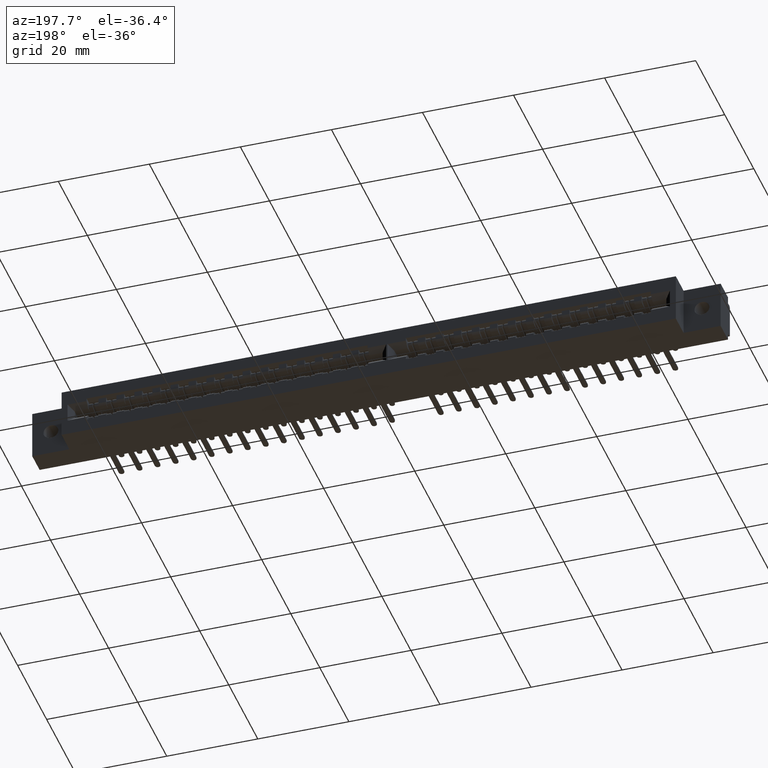
[diagram: clean part render]
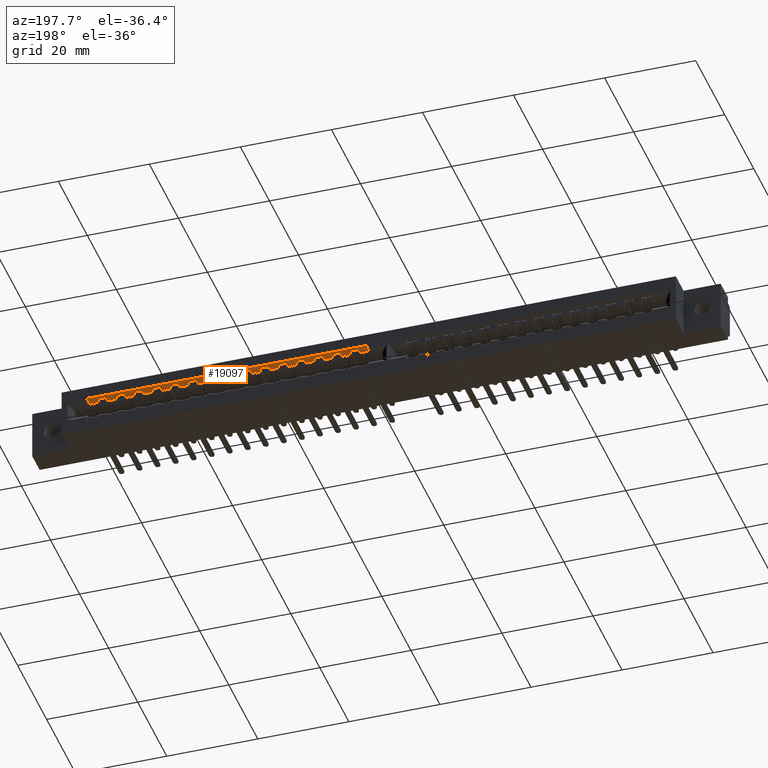
[diagram: same view with one face highlighted and labeled with its STEP entity id]
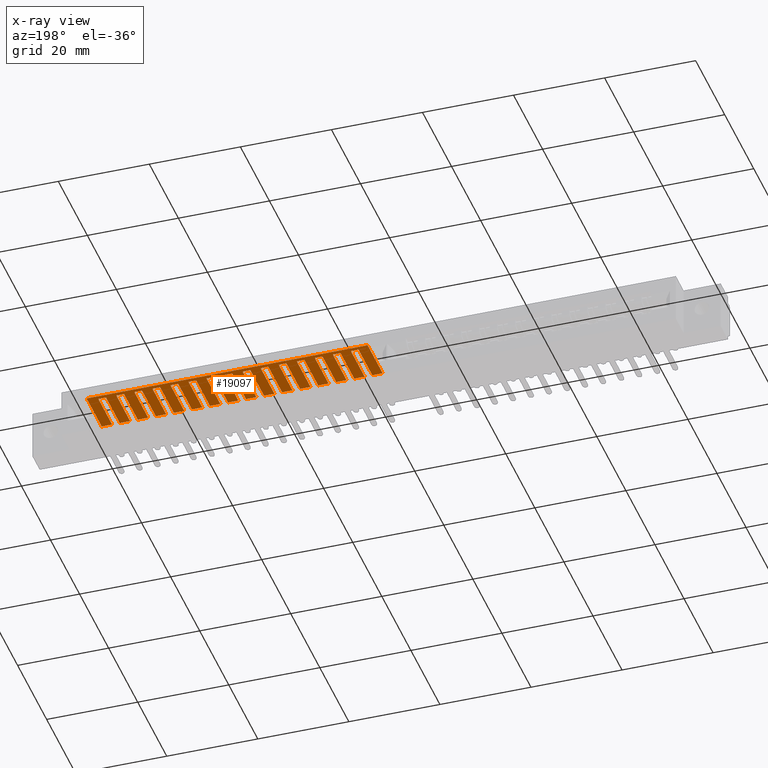
[diagram: x-ray of the same camera — body ghosted, the highlighted face saturated]
A machine part, auxiliary view. The second image highlights one B-rep face of the part: STEP entity #19097.
The next image is the same camera in x-ray: the body ghosted, the highlighted face saturated — about 0% of this face is hidden behind the body in this view.
In plain terms, the highlighted planar face has unit normal (0, 0, 1).
Its self-contained STEP definition (entity closure, byte-faithful):
#104 = LINE ( 'NONE', #19102, #3192 ) ;
#146 = DIRECTION ( 'NONE',  ( -0.0000000000000000000, 1.000000000000000000, -0.0000000000000000000 ) ) ;
#169 = DIRECTION ( 'NONE',  ( 1.000000000000000000, 0.0000000000000000000, -0.0000000000000000000 ) ) ;
#181 = VECTOR ( 'NONE', #18825, 1000.000000000000000 ) ;
#260 = CARTESIAN_POINT ( 'NONE',  ( 26.30170000000002500, -3.253161906569783700, 2.730499999999999300 ) ) ;
#265 = VECTOR ( 'NONE', #21540, 1000.000000000000000 ) ;
#413 = ORIENTED_EDGE ( 'NONE', *, *, #24569, .F. ) ;
#415 = ORIENTED_EDGE ( 'NONE', *, *, #9816, .T. ) ;
#428 = VERTEX_POINT ( 'NONE', #18815 ) ;
#611 = ORIENTED_EDGE ( 'NONE', *, *, #20425, .T. ) ;
#665 = VERTEX_POINT ( 'NONE', #13277 ) ;
#907 = EDGE_CURVE ( 'NONE', #24771, #23378, #5547, .T. ) ;
#908 = CARTESIAN_POINT ( 'NONE',  ( 55.71490000000002900, 1.295400000000000300, 2.730499999999999300 ) ) ;
#971 = VECTOR ( 'NONE', #3642, 1000.000000000000000 ) ;
#1290 = CARTESIAN_POINT ( 'NONE',  ( 16.09090000000002600, -3.253161906569783700, 2.730499999999999300 ) ) ;
#1464 = DIRECTION ( 'NONE',  ( -0.0000000000000000000, 1.000000000000000000, -0.0000000000000000000 ) ) ;
#1485 = VERTEX_POINT ( 'NONE', #23953 ) ;
#1487 = LINE ( 'NONE', #23002, #27735 ) ;
#1564 = LINE ( 'NONE', #25975, #11939 ) ;
#1596 = DIRECTION ( 'NONE',  ( -0.0000000000000000000, 0.0000000000000000000, 1.000000000000000000 ) ) ;
#1626 = EDGE_CURVE ( 'NONE', #15661, #7489, #11727, .T. ) ;
#1661 = VERTEX_POINT ( 'NONE', #9120 ) ;
#1669 = LINE ( 'NONE', #15692, #14489 ) ;
#1674 = CARTESIAN_POINT ( 'NONE',  ( 27.97810000000002600, -3.253161906569783700, 2.730499999999999300 ) ) ;
#1703 = VECTOR ( 'NONE', #14844, 1000.000000000000000 ) ;
#1753 = VECTOR ( 'NONE', #21882, 1000.000000000000000 ) ;
#1756 = CARTESIAN_POINT ( 'NONE',  ( 61.96330000000001800, 11.68399999999999900, 2.730499999999999300 ) ) ;
#1862 = VERTEX_POINT ( 'NONE', #12187 ) ;
#1923 = ORIENTED_EDGE ( 'NONE', *, *, #21116, .F. ) ;
#2109 = VERTEX_POINT ( 'NONE', #17331 ) ;
#2168 = EDGE_CURVE ( 'NONE', #27062, #19909, #9648, .T. ) ;
#2173 = EDGE_CURVE ( 'NONE', #26257, #15100, #11699, .T. ) ;
#2174 = ORIENTED_EDGE ( 'NONE', *, *, #28416, .F. ) ;
#2206 = EDGE_CURVE ( 'NONE', #20834, #21254, #17552, .T. ) ;
#2257 = DIRECTION ( 'NONE',  ( -1.000000000000000000, 0.0000000000000000000, -0.0000000000000000000 ) ) ;
#2326 = CARTESIAN_POINT ( 'NONE',  ( 59.67730000000002400, 1.295400000000000300, 2.730499999999999300 ) ) ;
#2344 = DIRECTION ( 'NONE',  ( 1.000000000000000000, 0.0000000000000000000, -0.0000000000000000000 ) ) ;
#2406 = ORIENTED_EDGE ( 'NONE', *, *, #8125, .F. ) ;
#2445 = EDGE_CURVE ( 'NONE', #12649, #19229, #20613, .T. ) ;
#2526 = ORIENTED_EDGE ( 'NONE', *, *, #9616, .F. ) ;
#2570 = ORIENTED_EDGE ( 'NONE', *, *, #5096, .F. ) ;
#2584 = ORIENTED_EDGE ( 'NONE', *, *, #13495, .T. ) ;
#2784 = LINE ( 'NONE', #13828, #25923 ) ;
#2935 = VERTEX_POINT ( 'NONE', #7276 ) ;
#3079 = VERTEX_POINT ( 'NONE', #16952 ) ;
#3192 = VECTOR ( 'NONE', #1464, 1000.000000000000000 ) ;
#3386 = VECTOR ( 'NONE', #21521, 1000.000000000000000 ) ;
#3409 = ORIENTED_EDGE ( 'NONE', *, *, #25016, .F. ) ;
#3433 = CARTESIAN_POINT ( 'NONE',  ( 22.33930000000002600, -3.253161906569783700, 2.730499999999999300 ) ) ;
#3462 = DIRECTION ( 'NONE',  ( -0.0000000000000000000, 1.000000000000000000, -0.0000000000000000000 ) ) ;
#3486 = CARTESIAN_POINT ( 'NONE',  ( 59.67730000000002400, 1.295400000000000300, 2.730499999999999300 ) ) ;
#3518 = DIRECTION ( 'NONE',  ( -1.000000000000000000, 0.0000000000000000000, -0.0000000000000000000 ) ) ;
#3530 = VECTOR ( 'NONE', #6974, 1000.000000000000000 ) ;
#3550 = VERTEX_POINT ( 'NONE', #14728 ) ;
#3572 = VERTEX_POINT ( 'NONE', #16558 ) ;
#3623 = VECTOR ( 'NONE', #4742, 1000.000000000000000 ) ;
#3642 = DIRECTION ( 'NONE',  ( -0.0000000000000000000, 1.000000000000000000, -0.0000000000000000000 ) ) ;
#3651 = ORIENTED_EDGE ( 'NONE', *, *, #27616, .T. ) ;
#3730 = EDGE_CURVE ( 'NONE', #15372, #16637, #9900, .T. ) ;
#3767 = LINE ( 'NONE', #25730, #7606 ) ;
#3889 = LINE ( 'NONE', #26399, #16337 ) ;
#3935 = EDGE_LOOP ( 'NONE', ( #4806, #19410, #10012, #18309, #19708, #611, #14549, #413, #2526, #4936, #12350, #8821, #11934, #10652, #7735, #3409, #8180, #19184, #415, #19672, #20360, #25261, #18896, #25601, #14064, #7758, #27503, #10928, #27665, #26949, #24207, #17912, #1923, #24141, #23912, #2406, #23557, #3651, #14375, #5982, #27499, #11997, #15627, #13016, #7265, #13994, #11641, #2570, #21286, #23193, #20615, #16191, #21350, #16376, #9355, #2584, #10397, #18810, #4181, #2174, #5344, #27966, #13004, #21676 ) ) ;
#3970 = CARTESIAN_POINT ( 'NONE',  ( 59.67730000000002400, 1.295400000000000300, 2.730499999999999300 ) ) ;
#3995 = CARTESIAN_POINT ( 'NONE',  ( 0.2413000000000276000, 11.68399999999999900, 2.730499999999999300 ) ) ;
#4017 = CARTESIAN_POINT ( 'NONE',  ( 51.75250000000001900, 1.295400000000000300, 2.730499999999999300 ) ) ;
#4027 = EDGE_CURVE ( 'NONE', #17429, #2935, #28123, .T. ) ;
#4090 = DIRECTION ( 'NONE',  ( -0.0000000000000000000, 1.000000000000000000, -0.0000000000000000000 ) ) ;
#4105 = EDGE_CURVE ( 'NONE', #428, #26117, #5011, .T. ) ;
#4133 = LINE ( 'NONE', #27484, #7641 ) ;
#4135 = DIRECTION ( 'NONE',  ( -0.0000000000000000000, 1.000000000000000000, -0.0000000000000000000 ) ) ;
#4150 = CARTESIAN_POINT ( 'NONE',  ( 2.527300000000023900, 10.79499999999999800, 2.730499999999999300 ) ) ;
#4181 = ORIENTED_EDGE ( 'NONE', *, *, #26788, .T. ) ;
#4316 = LINE ( 'NONE', #13849, #24021 ) ;
#4416 = VERTEX_POINT ( 'NONE', #8636 ) ;
#4448 = VERTEX_POINT ( 'NONE', #19697 ) ;
#4467 = CARTESIAN_POINT ( 'NONE',  ( 0.2413000000000276000, -3.253161906569783700, 2.730499999999999300 ) ) ;
#4544 = VECTOR ( 'NONE', #13050, 1000.000000000000000 ) ;
#4594 = VECTOR ( 'NONE', #21776, 1000.000000000000000 ) ;
#4600 = LINE ( 'NONE', #27430, #19448 ) ;
#4732 = CARTESIAN_POINT ( 'NONE',  ( 27.97810000000002600, 1.295400000000000300, 2.730499999999999300 ) ) ;
#4742 = DIRECTION ( 'NONE',  ( -1.000000000000000000, 0.0000000000000000000, -0.0000000000000000000 ) ) ;
#4743 = AXIS2_PLACEMENT_3D ( 'NONE', #8279, #1596, #28016 ) ;
#4806 = ORIENTED_EDGE ( 'NONE', *, *, #24276, .F. ) ;
#4936 = ORIENTED_EDGE ( 'NONE', *, *, #14675, .T. ) ;
#4956 = VERTEX_POINT ( 'NONE', #11060 ) ;
#4966 = VECTOR ( 'NONE', #12619, 1000.000000000000000 ) ;
#5002 = EDGE_CURVE ( 'NONE', #11682, #6016, #17383, .T. ) ;
#5011 = LINE ( 'NONE', #9804, #7831 ) ;
#5047 = LINE ( 'NONE', #9866, #27832 ) ;
#5084 = CARTESIAN_POINT ( 'NONE',  ( 61.96330000000001800, 10.79499999999999800, 2.730499999999999300 ) ) ;
#5096 = EDGE_CURVE ( 'NONE', #5677, #665, #4600, .T. ) ;
#5193 = VERTEX_POINT ( 'NONE', #20490 ) ;
#5263 = CARTESIAN_POINT ( 'NONE',  ( 34.22650000000002300, -3.253161906569783700, 2.730499999999999300 ) ) ;
#5327 = CARTESIAN_POINT ( 'NONE',  ( 2.527300000000023900, -3.253161906569783700, 2.730499999999999300 ) ) ;
#5344 = ORIENTED_EDGE ( 'NONE', *, *, #28231, .F. ) ;
#5390 = VERTEX_POINT ( 'NONE', #13877 ) ;
#5431 = CARTESIAN_POINT ( 'NONE',  ( 14.41450000000002500, 10.79499999999999800, 2.730499999999999300 ) ) ;
#5542 = CARTESIAN_POINT ( 'NONE',  ( 38.18890000000002500, 1.295400000000000300, 2.730499999999999300 ) ) ;
#5547 = LINE ( 'NONE', #260, #16592 ) ;
#5644 = EDGE_CURVE ( 'NONE', #15235, #665, #28120, .T. ) ;
#5677 = VERTEX_POINT ( 'NONE', #13473 ) ;
#5714 = VECTOR ( 'NONE', #169, 1000.000000000000000 ) ;
#5780 = LINE ( 'NONE', #18992, #971 ) ;
#5851 = VECTOR ( 'NONE', #23977, 1000.000000000000000 ) ;
#5982 = ORIENTED_EDGE ( 'NONE', *, *, #21438, .F. ) ;
#6016 = VERTEX_POINT ( 'NONE', #6455 ) ;
#6053 = VECTOR ( 'NONE', #27688, 1000.000000000000000 ) ;
#6086 = LINE ( 'NONE', #3433, #26098 ) ;
#6141 = EDGE_CURVE ( 'NONE', #14304, #13969, #25025, .T. ) ;
#6308 = EDGE_CURVE ( 'NONE', #27366, #15372, #3889, .T. ) ;
#6455 = CARTESIAN_POINT ( 'NONE',  ( 38.18890000000002500, 10.79499999999999800, 2.730499999999999300 ) ) ;
#6504 = CARTESIAN_POINT ( 'NONE',  ( 61.96330000000001800, 10.79499999999999800, 2.730499999999999300 ) ) ;
#6643 = LINE ( 'NONE', #26245, #4544 ) ;
#6892 = DIRECTION ( 'NONE',  ( -0.0000000000000000000, 1.000000000000000000, -0.0000000000000000000 ) ) ;
#6923 = CARTESIAN_POINT ( 'NONE',  ( 31.94050000000002500, 10.79499999999999800, 2.730499999999999300 ) ) ;
#6974 = DIRECTION ( 'NONE',  ( 1.000000000000000000, 0.0000000000000000000, -0.0000000000000000000 ) ) ;
#7128 = VECTOR ( 'NONE', #27051, 1000.000000000000000 ) ;
#7129 = CARTESIAN_POINT ( 'NONE',  ( 8.166100000000030300, 1.295400000000000300, 2.730499999999999300 ) ) ;
#7185 = LINE ( 'NONE', #16698, #7554 ) ;
#7196 = CARTESIAN_POINT ( 'NONE',  ( 31.94050000000002500, -3.253161906569783700, 2.730499999999999300 ) ) ;
#7265 = ORIENTED_EDGE ( 'NONE', *, *, #12554, .F. ) ;
#7276 = CARTESIAN_POINT ( 'NONE',  ( 0.2413000000000276000, 1.295400000000000300, 2.730499999999999300 ) ) ;
#7349 = DIRECTION ( 'NONE',  ( 1.000000000000000000, 0.0000000000000000000, 0.0000000000000000000 ) ) ;
#7462 = LINE ( 'NONE', #24180, #5714 ) ;
#7489 = VERTEX_POINT ( 'NONE', #10569 ) ;
#7490 = DIRECTION ( 'NONE',  ( 1.000000000000000000, 0.0000000000000000000, -0.0000000000000000000 ) ) ;
#7497 = LINE ( 'NONE', #10689, #8869 ) ;
#7545 = DIRECTION ( 'NONE',  ( -1.000000000000000000, 0.0000000000000000000, -0.0000000000000000000 ) ) ;
#7554 = VECTOR ( 'NONE', #7660, 1000.000000000000000 ) ;
#7606 = VECTOR ( 'NONE', #4090, 1000.000000000000000 ) ;
#7617 = CARTESIAN_POINT ( 'NONE',  ( 43.82770000000002100, -3.253161906569783700, 2.730499999999999300 ) ) ;
#7628 = LINE ( 'NONE', #7617, #8999 ) ;
#7641 = VECTOR ( 'NONE', #25099, 1000.000000000000000 ) ;
#7654 = CARTESIAN_POINT ( 'NONE',  ( 24.01570000000002700, -3.253161906569783700, 2.730499999999999300 ) ) ;
#7660 = DIRECTION ( 'NONE',  ( -1.000000000000000000, 0.0000000000000000000, -0.0000000000000000000 ) ) ;
#7673 = VERTEX_POINT ( 'NONE', #18144 ) ;
#7705 = EDGE_CURVE ( 'NONE', #5390, #15925, #2784, .T. ) ;
#7735 = ORIENTED_EDGE ( 'NONE', *, *, #16641, .T. ) ;
#7758 = ORIENTED_EDGE ( 'NONE', *, *, #6308, .T. ) ;
#7831 = VECTOR ( 'NONE', #21055, 1000.000000000000000 ) ;
#8061 = VERTEX_POINT ( 'NONE', #19167 ) ;
#8097 = CARTESIAN_POINT ( 'NONE',  ( 24.01570000000002700, 1.295400000000000300, 2.730499999999999300 ) ) ;
#8113 = LINE ( 'NONE', #28430, #4594 ) ;
#8118 = CARTESIAN_POINT ( 'NONE',  ( 20.05330000000003200, 10.79499999999999800, 2.730499999999999300 ) ) ;
#8125 = EDGE_CURVE ( 'NONE', #7673, #20554, #22465, .T. ) ;
#8180 = ORIENTED_EDGE ( 'NONE', *, *, #5002, .F. ) ;
#8183 = CARTESIAN_POINT ( 'NONE',  ( 2.527300000000023900, 1.295400000000000300, 2.730499999999999300 ) ) ;
#8279 = CARTESIAN_POINT ( 'NONE',  ( 59.67730000000002400, -3.253161906569783700, 2.730499999999999300 ) ) ;
#8419 = CARTESIAN_POINT ( 'NONE',  ( 61.96330000000001800, 10.79499999999999800, 2.730499999999999300 ) ) ;
#8464 = DIRECTION ( 'NONE',  ( 1.000000000000000000, 0.0000000000000000000, -0.0000000000000000000 ) ) ;
#8564 = EDGE_CURVE ( 'NONE', #3572, #28358, #7628, .T. ) ;
#8625 = EDGE_CURVE ( 'NONE', #2935, #14214, #19295, .T. ) ;
#8636 = CARTESIAN_POINT ( 'NONE',  ( 16.09090000000002600, 10.79499999999999800, 2.730499999999999300 ) ) ;
#8726 = VERTEX_POINT ( 'NONE', #19621 ) ;
#8806 = CARTESIAN_POINT ( 'NONE',  ( 54.03850000000002000, -3.253161906569783700, 2.730499999999999300 ) ) ;
#8821 = ORIENTED_EDGE ( 'NONE', *, *, #20848, .F. ) ;
#8869 = VECTOR ( 'NONE', #10502, 1000.000000000000000 ) ;
#8929 = VERTEX_POINT ( 'NONE', #14603 ) ;
#8950 = DIRECTION ( 'NONE',  ( -0.0000000000000000000, 1.000000000000000000, -0.0000000000000000000 ) ) ;
#8990 = LINE ( 'NONE', #11288, #21383 ) ;
#8999 = VECTOR ( 'NONE', #23022, 1000.000000000000000 ) ;
#9120 = CARTESIAN_POINT ( 'NONE',  ( 35.90290000000003100, 10.79499999999999800, 2.730499999999999300 ) ) ;
#9127 = VECTOR ( 'NONE', #25721, 1000.000000000000000 ) ;
#9355 = ORIENTED_EDGE ( 'NONE', *, *, #8625, .T. ) ;
#9499 = CARTESIAN_POINT ( 'NONE',  ( 50.07610000000001800, 10.79499999999999800, 2.730499999999999300 ) ) ;
#9563 = EDGE_CURVE ( 'NONE', #20834, #1485, #11057, .T. ) ;
#9566 = CARTESIAN_POINT ( 'NONE',  ( 39.86530000000002600, 10.79499999999999800, 2.730499999999999300 ) ) ;
#9583 = EDGE_CURVE ( 'NONE', #10449, #27907, #21374, .T. ) ;
#9616 = EDGE_CURVE ( 'NONE', #10899, #13286, #3767, .T. ) ;
#9624 = VERTEX_POINT ( 'NONE', #14659 ) ;
#9648 = LINE ( 'NONE', #20296, #26847 ) ;
#9753 = CARTESIAN_POINT ( 'NONE',  ( 61.96330000000001800, 1.295400000000000300, 2.730499999999999300 ) ) ;
#9804 = CARTESIAN_POINT ( 'NONE',  ( 12.12850000000002700, -3.253161906569783700, 2.730499999999999300 ) ) ;
#9812 = DIRECTION ( 'NONE',  ( -1.000000000000000000, 0.0000000000000000000, -0.0000000000000000000 ) ) ;
#9816 = EDGE_CURVE ( 'NONE', #27993, #1661, #1669, .T. ) ;
#9866 = CARTESIAN_POINT ( 'NONE',  ( 59.67730000000002400, 1.295400000000000300, 2.730499999999999300 ) ) ;
#9900 = LINE ( 'NONE', #1674, #20569 ) ;
#9986 = CARTESIAN_POINT ( 'NONE',  ( 6.489700000000022200, 1.295400000000000300, 2.730499999999999300 ) ) ;
#9991 = EDGE_CURVE ( 'NONE', #17429, #10449, #27884, .T. ) ;
#10012 = ORIENTED_EDGE ( 'NONE', *, *, #22547, .T. ) ;
#10142 = VERTEX_POINT ( 'NONE', #5431 ) ;
#10227 = DIRECTION ( 'NONE',  ( 1.000000000000000000, 0.0000000000000000000, -0.0000000000000000000 ) ) ;
#10282 = EDGE_CURVE ( 'NONE', #9624, #26257, #11359, .T. ) ;
#10303 = CARTESIAN_POINT ( 'NONE',  ( 59.67730000000002400, 1.295400000000000300, 2.730499999999999300 ) ) ;
#10397 = ORIENTED_EDGE ( 'NONE', *, *, #21649, .F. ) ;
#10405 = PLANE ( 'NONE',  #4743 ) ;
#10430 = CARTESIAN_POINT ( 'NONE',  ( 51.75250000000001900, -3.253161906569783700, 2.730499999999999300 ) ) ;
#10449 = VERTEX_POINT ( 'NONE', #4150 ) ;
#10502 = DIRECTION ( 'NONE',  ( -1.000000000000000000, 0.0000000000000000000, -0.0000000000000000000 ) ) ;
#10569 = CARTESIAN_POINT ( 'NONE',  ( 4.203700000000025300, 1.295400000000000300, 2.730499999999999300 ) ) ;
#10652 = ORIENTED_EDGE ( 'NONE', *, *, #2206, .T. ) ;
#10689 = CARTESIAN_POINT ( 'NONE',  ( 59.67730000000002400, 1.295400000000000300, 2.730499999999999300 ) ) ;
#10757 = DIRECTION ( 'NONE',  ( -0.0000000000000000000, 1.000000000000000000, -0.0000000000000000000 ) ) ;
#10773 = VECTOR ( 'NONE', #20052, 1000.000000000000000 ) ;
#10899 = VERTEX_POINT ( 'NONE', #23245 ) ;
#10928 = ORIENTED_EDGE ( 'NONE', *, *, #16995, .F. ) ;
#11040 = CARTESIAN_POINT ( 'NONE',  ( 51.75250000000001900, 10.79499999999999800, 2.730499999999999300 ) ) ;
#11057 = LINE ( 'NONE', #16849, #1703 ) ;
#11060 = CARTESIAN_POINT ( 'NONE',  ( 58.00090000000002300, 10.79499999999999800, 2.730499999999999300 ) ) ;
#11233 = LINE ( 'NONE', #14390, #28103 ) ;
#11288 = CARTESIAN_POINT ( 'NONE',  ( 59.67730000000002400, 1.295400000000000300, 2.730499999999999300 ) ) ;
#11359 = LINE ( 'NONE', #16990, #3386 ) ;
#11562 = DIRECTION ( 'NONE',  ( -1.000000000000000000, 0.0000000000000000000, -0.0000000000000000000 ) ) ;
#11617 = EDGE_CURVE ( 'NONE', #18373, #15235, #26762, .T. ) ;
#11641 = ORIENTED_EDGE ( 'NONE', *, *, #5644, .T. ) ;
#11682 = VERTEX_POINT ( 'NONE', #5542 ) ;
#11699 = LINE ( 'NONE', #26661, #15494 ) ;
#11727 = LINE ( 'NONE', #17878, #20337 ) ;
#11755 = DIRECTION ( 'NONE',  ( -0.0000000000000000000, 1.000000000000000000, -0.0000000000000000000 ) ) ;
#11817 = DIRECTION ( 'NONE',  ( -0.0000000000000000000, 1.000000000000000000, -0.0000000000000000000 ) ) ;
#11923 = VECTOR ( 'NONE', #6892, 1000.000000000000000 ) ;
#11934 = ORIENTED_EDGE ( 'NONE', *, *, #9563, .F. ) ;
#11939 = VECTOR ( 'NONE', #27987, 1000.000000000000000 ) ;
#11997 = ORIENTED_EDGE ( 'NONE', *, *, #12373, .T. ) ;
#12040 = CARTESIAN_POINT ( 'NONE',  ( 30.26410000000002400, 1.295400000000000300, 2.730499999999999300 ) ) ;
#12187 = CARTESIAN_POINT ( 'NONE',  ( 14.41450000000002500, 1.295400000000000300, 2.730499999999999300 ) ) ;
#12210 = CARTESIAN_POINT ( 'NONE',  ( 55.71490000000002900, 10.79499999999999800, 2.730499999999999300 ) ) ;
#12241 = DIRECTION ( 'NONE',  ( 1.000000000000000000, 0.0000000000000000000, -0.0000000000000000000 ) ) ;
#12350 = ORIENTED_EDGE ( 'NONE', *, *, #8564, .T. ) ;
#12373 = EDGE_CURVE ( 'NONE', #1862, #428, #7185, .T. ) ;
#12469 = LINE ( 'NONE', #14802, #20717 ) ;
#12554 = EDGE_CURVE ( 'NONE', #18373, #25089, #5780, .T. ) ;
#12619 = DIRECTION ( 'NONE',  ( -0.0000000000000000000, 1.000000000000000000, -0.0000000000000000000 ) ) ;
#12649 = VERTEX_POINT ( 'NONE', #19459 ) ;
#12931 = EDGE_CURVE ( 'NONE', #5390, #8726, #28190, .T. ) ;
#12949 = CARTESIAN_POINT ( 'NONE',  ( 43.82770000000002100, 10.79499999999999800, 2.730499999999999300 ) ) ;
#12996 = LINE ( 'NONE', #7196, #7128 ) ;
#13004 = ORIENTED_EDGE ( 'NONE', *, *, #15964, .T. ) ;
#13016 = ORIENTED_EDGE ( 'NONE', *, *, #21037, .F. ) ;
#13050 = DIRECTION ( 'NONE',  ( 1.000000000000000000, 0.0000000000000000000, -0.0000000000000000000 ) ) ;
#13137 = EDGE_CURVE ( 'NONE', #27366, #14304, #14746, .T. ) ;
#13198 = CARTESIAN_POINT ( 'NONE',  ( 42.15130000000002000, 1.295400000000000300, 2.730499999999999300 ) ) ;
#13205 = VERTEX_POINT ( 'NONE', #8097 ) ;
#13277 = CARTESIAN_POINT ( 'NONE',  ( 8.166100000000030300, 10.79499999999999800, 2.730499999999999300 ) ) ;
#13286 = VERTEX_POINT ( 'NONE', #15401 ) ;
#13318 = LINE ( 'NONE', #25205, #25745 ) ;
#13470 = DIRECTION ( 'NONE',  ( 1.000000000000000000, 0.0000000000000000000, -0.0000000000000000000 ) ) ;
#13473 = CARTESIAN_POINT ( 'NONE',  ( 6.489700000000022200, 10.79499999999999800, 2.730499999999999300 ) ) ;
#13495 = EDGE_CURVE ( 'NONE', #14214, #21836, #13318, .T. ) ;
#13587 = CARTESIAN_POINT ( 'NONE',  ( 59.67730000000002400, 1.295400000000000300, 2.730499999999999300 ) ) ;
#13662 = DIRECTION ( 'NONE',  ( -0.0000000000000000000, 1.000000000000000000, -0.0000000000000000000 ) ) ;
#13827 = CARTESIAN_POINT ( 'NONE',  ( 12.12850000000002700, 10.79499999999999800, 2.730499999999999300 ) ) ;
#13828 = CARTESIAN_POINT ( 'NONE',  ( 59.67730000000002400, 1.295400000000000300, 2.730499999999999300 ) ) ;
#13849 = CARTESIAN_POINT ( 'NONE',  ( 61.96330000000001800, -3.253161906569783700, 2.730499999999999300 ) ) ;
#13877 = CARTESIAN_POINT ( 'NONE',  ( 34.22650000000002300, 1.295400000000000300, 2.730499999999999300 ) ) ;
#13969 = VERTEX_POINT ( 'NONE', #6923 ) ;
#13994 = ORIENTED_EDGE ( 'NONE', *, *, #11617, .T. ) ;
#14064 = ORIENTED_EDGE ( 'NONE', *, *, #13137, .F. ) ;
#14214 = VERTEX_POINT ( 'NONE', #3995 ) ;
#14289 = EDGE_CURVE ( 'NONE', #15661, #5677, #27070, .T. ) ;
#14304 = VERTEX_POINT ( 'NONE', #14946 ) ;
#14375 = ORIENTED_EDGE ( 'NONE', *, *, #14786, .T. ) ;
#14390 = CARTESIAN_POINT ( 'NONE',  ( 61.96330000000001800, 10.79499999999999800, 2.730499999999999300 ) ) ;
#14489 = VECTOR ( 'NONE', #146, 1000.000000000000000 ) ;
#14549 = ORIENTED_EDGE ( 'NONE', *, *, #2168, .T. ) ;
#14603 = CARTESIAN_POINT ( 'NONE',  ( 22.33930000000002600, 10.79499999999999800, 2.730499999999999300 ) ) ;
#14659 = CARTESIAN_POINT ( 'NONE',  ( 50.07610000000001800, 1.295400000000000300, 2.730499999999999300 ) ) ;
#14675 = EDGE_CURVE ( 'NONE', #10899, #3572, #1487, .T. ) ;
#14728 = CARTESIAN_POINT ( 'NONE',  ( 59.67730000000002400, 1.295400000000000300, 2.730499999999999300 ) ) ;
#14737 = VERTEX_POINT ( 'NONE', #908 ) ;
#14739 = CARTESIAN_POINT ( 'NONE',  ( 30.26410000000002400, -3.253161906569783700, 2.730499999999999300 ) ) ;
#14746 = LINE ( 'NONE', #14739, #24380 ) ;
#14766 = LINE ( 'NONE', #23282, #16819 ) ;
#14786 = EDGE_CURVE ( 'NONE', #5193, #4416, #16008, .T. ) ;
#14802 = CARTESIAN_POINT ( 'NONE',  ( 18.37690000000002400, -3.253161906569783700, 2.730499999999999300 ) ) ;
#14844 = DIRECTION ( 'NONE',  ( -0.0000000000000000000, 1.000000000000000000, -0.0000000000000000000 ) ) ;
#14903 = CARTESIAN_POINT ( 'NONE',  ( 47.79010000000002400, 10.79499999999999800, 2.730499999999999300 ) ) ;
#14946 = CARTESIAN_POINT ( 'NONE',  ( 30.26410000000002400, 10.79499999999999800, 2.730499999999999300 ) ) ;
#14954 = VECTOR ( 'NONE', #4135, 1000.000000000000000 ) ;
#15037 = CARTESIAN_POINT ( 'NONE',  ( 61.96330000000001800, 10.79499999999999800, 2.730499999999999300 ) ) ;
#15100 = VERTEX_POINT ( 'NONE', #11040 ) ;
#15235 = VERTEX_POINT ( 'NONE', #7129 ) ;
#15302 = LINE ( 'NONE', #8419, #3530 ) ;
#15372 = VERTEX_POINT ( 'NONE', #4732 ) ;
#15401 = CARTESIAN_POINT ( 'NONE',  ( 46.11370000000002300, 10.79499999999999800, 2.730499999999999300 ) ) ;
#15494 = VECTOR ( 'NONE', #2344, 1000.000000000000000 ) ;
#15627 = ORIENTED_EDGE ( 'NONE', *, *, #4105, .T. ) ;
#15639 = LINE ( 'NONE', #17269, #14954 ) ;
#15661 = VERTEX_POINT ( 'NONE', #9986 ) ;
#15692 = CARTESIAN_POINT ( 'NONE',  ( 35.90290000000003100, -3.253161906569783700, 2.730499999999999300 ) ) ;
#15916 = EDGE_CURVE ( 'NONE', #8726, #1661, #23569, .T. ) ;
#15925 = VERTEX_POINT ( 'NONE', #26153 ) ;
#15964 = EDGE_CURVE ( 'NONE', #14737, #25770, #15639, .T. ) ;
#15965 = CARTESIAN_POINT ( 'NONE',  ( 4.203700000000025300, 10.79499999999999800, 2.730499999999999300 ) ) ;
#15998 = EDGE_CURVE ( 'NONE', #8929, #3079, #6643, .T. ) ;
#16008 = LINE ( 'NONE', #1290, #20474 ) ;
#16181 = VERTEX_POINT ( 'NONE', #4017 ) ;
#16191 = ORIENTED_EDGE ( 'NONE', *, *, #9583, .F. ) ;
#16241 = LINE ( 'NONE', #8806, #10773 ) ;
#16271 = CARTESIAN_POINT ( 'NONE',  ( 61.96330000000001800, 10.79499999999999800, 2.730499999999999300 ) ) ;
#16337 = VECTOR ( 'NONE', #2257, 1000.000000000000000 ) ;
#16376 = ORIENTED_EDGE ( 'NONE', *, *, #4027, .T. ) ;
#16426 = DIRECTION ( 'NONE',  ( -1.000000000000000000, 0.0000000000000000000, -0.0000000000000000000 ) ) ;
#16554 = VECTOR ( 'NONE', #12241, 1000.000000000000000 ) ;
#16558 = CARTESIAN_POINT ( 'NONE',  ( 43.82770000000002100, 1.295400000000000300, 2.730499999999999300 ) ) ;
#16592 = VECTOR ( 'NONE', #24658, 1000.000000000000000 ) ;
#16634 = DIRECTION ( 'NONE',  ( -0.0000000000000000000, 1.000000000000000000, -0.0000000000000000000 ) ) ;
#16637 = VERTEX_POINT ( 'NONE', #22549 ) ;
#16641 = EDGE_CURVE ( 'NONE', #21254, #24917, #17301, .T. ) ;
#16698 = CARTESIAN_POINT ( 'NONE',  ( 59.67730000000002400, 1.295400000000000300, 2.730499999999999300 ) ) ;
#16770 = VECTOR ( 'NONE', #13470, 1000.000000000000000 ) ;
#16803 = VERTEX_POINT ( 'NONE', #18571 ) ;
#16819 = VECTOR ( 'NONE', #9812, 1000.000000000000000 ) ;
#16849 = CARTESIAN_POINT ( 'NONE',  ( 42.15130000000002000, -3.253161906569783700, 2.730499999999999300 ) ) ;
#16952 = CARTESIAN_POINT ( 'NONE',  ( 24.01570000000002700, 10.79499999999999800, 2.730499999999999300 ) ) ;
#16990 = CARTESIAN_POINT ( 'NONE',  ( 50.07610000000001800, -3.253161906569783700, 2.730499999999999300 ) ) ;
#16995 = EDGE_CURVE ( 'NONE', #23378, #16637, #25255, .T. ) ;
#17102 = DIRECTION ( 'NONE',  ( -0.0000000000000000000, 1.000000000000000000, -0.0000000000000000000 ) ) ;
#17239 = LINE ( 'NONE', #5084, #16554 ) ;
#17269 = CARTESIAN_POINT ( 'NONE',  ( 55.71490000000002900, -3.253161906569783700, 2.730499999999999300 ) ) ;
#17301 = LINE ( 'NONE', #22739, #23513 ) ;
#17331 = CARTESIAN_POINT ( 'NONE',  ( 59.67730000000002400, 10.79499999999999800, 2.730499999999999300 ) ) ;
#17383 = LINE ( 'NONE', #20870, #18764 ) ;
#17426 = CARTESIAN_POINT ( 'NONE',  ( 61.96330000000001800, 10.79499999999999800, 2.730499999999999300 ) ) ;
#17429 = VERTEX_POINT ( 'NONE', #8183 ) ;
#17430 = LINE ( 'NONE', #21031, #6053 ) ;
#17552 = LINE ( 'NONE', #13587, #25163 ) ;
#17663 = VECTOR ( 'NONE', #13662, 1000.000000000000000 ) ;
#17797 = CARTESIAN_POINT ( 'NONE',  ( 18.37690000000002400, 1.295400000000000300, 2.730499999999999300 ) ) ;
#17810 = EDGE_CURVE ( 'NONE', #16803, #16181, #22758, .T. ) ;
#17878 = CARTESIAN_POINT ( 'NONE',  ( 59.67730000000002400, 1.295400000000000300, 2.730499999999999300 ) ) ;
#17912 = ORIENTED_EDGE ( 'NONE', *, *, #15998, .F. ) ;
#18144 = CARTESIAN_POINT ( 'NONE',  ( 18.37690000000002400, 10.79499999999999800, 2.730499999999999300 ) ) ;
#18225 = CARTESIAN_POINT ( 'NONE',  ( 26.30170000000002500, 10.79499999999999800, 2.730499999999999300 ) ) ;
#18309 = ORIENTED_EDGE ( 'NONE', *, *, #2173, .F. ) ;
#18373 = VERTEX_POINT ( 'NONE', #26912 ) ;
#18571 = CARTESIAN_POINT ( 'NONE',  ( 54.03850000000002000, 1.295400000000000300, 2.730499999999999300 ) ) ;
#18764 = VECTOR ( 'NONE', #11817, 1000.000000000000000 ) ;
#18810 = ORIENTED_EDGE ( 'NONE', *, *, #23137, .T. ) ;
#18815 = CARTESIAN_POINT ( 'NONE',  ( 12.12850000000002700, 1.295400000000000300, 2.730499999999999300 ) ) ;
#18825 = DIRECTION ( 'NONE',  ( -1.000000000000000000, 0.0000000000000000000, -0.0000000000000000000 ) ) ;
#18896 = ORIENTED_EDGE ( 'NONE', *, *, #21644, .T. ) ;
#18992 = CARTESIAN_POINT ( 'NONE',  ( 10.45210000000002600, -3.253161906569783700, 2.730499999999999300 ) ) ;
#19077 = DIRECTION ( 'NONE',  ( -0.0000000000000000000, 1.000000000000000000, -0.0000000000000000000 ) ) ;
#19097 = ADVANCED_FACE ( 'NONE', ( #27564 ), #10405, .F. ) ;
#19102 = CARTESIAN_POINT ( 'NONE',  ( 58.00090000000002300, -3.253161906569783700, 2.730499999999999300 ) ) ;
#19167 = CARTESIAN_POINT ( 'NONE',  ( 58.00090000000002300, 1.295400000000000300, 2.730499999999999300 ) ) ;
#19184 = ORIENTED_EDGE ( 'NONE', *, *, #19785, .T. ) ;
#19229 = VERTEX_POINT ( 'NONE', #21191 ) ;
#19295 = LINE ( 'NONE', #4467, #5851 ) ;
#19410 = ORIENTED_EDGE ( 'NONE', *, *, #17810, .T. ) ;
#19429 = DIRECTION ( 'NONE',  ( 1.000000000000000000, 0.0000000000000000000, -0.0000000000000000000 ) ) ;
#19448 = VECTOR ( 'NONE', #7490, 1000.000000000000000 ) ;
#19459 = CARTESIAN_POINT ( 'NONE',  ( 22.33930000000002600, 1.295400000000000300, 2.730499999999999300 ) ) ;
#19474 = CARTESIAN_POINT ( 'NONE',  ( 61.96330000000001800, 10.79499999999999800, 2.730499999999999300 ) ) ;
#19528 = VERTEX_POINT ( 'NONE', #17797 ) ;
#19621 = CARTESIAN_POINT ( 'NONE',  ( 34.22650000000002300, 10.79499999999999800, 2.730499999999999300 ) ) ;
#19672 = ORIENTED_EDGE ( 'NONE', *, *, #15916, .F. ) ;
#19697 = CARTESIAN_POINT ( 'NONE',  ( 54.03850000000002000, 10.79499999999999800, 2.730499999999999300 ) ) ;
#19708 = ORIENTED_EDGE ( 'NONE', *, *, #10282, .F. ) ;
#19764 = LINE ( 'NONE', #10303, #9127 ) ;
#19785 = EDGE_CURVE ( 'NONE', #11682, #27993, #14766, .T. ) ;
#19851 = LINE ( 'NONE', #6504, #16770 ) ;
#19909 = VERTEX_POINT ( 'NONE', #14903 ) ;
#20052 = DIRECTION ( 'NONE',  ( -0.0000000000000000000, 1.000000000000000000, -0.0000000000000000000 ) ) ;
#20296 = CARTESIAN_POINT ( 'NONE',  ( 47.79010000000002400, -3.253161906569783700, 2.730499999999999300 ) ) ;
#20337 = VECTOR ( 'NONE', #22601, 1000.000000000000000 ) ;
#20360 = ORIENTED_EDGE ( 'NONE', *, *, #12931, .F. ) ;
#20425 = EDGE_CURVE ( 'NONE', #9624, #27062, #5047, .T. ) ;
#20474 = VECTOR ( 'NONE', #16634, 1000.000000000000000 ) ;
#20490 = CARTESIAN_POINT ( 'NONE',  ( 16.09090000000002600, 1.295400000000000300, 2.730499999999999300 ) ) ;
#20554 = VERTEX_POINT ( 'NONE', #8118 ) ;
#20569 = VECTOR ( 'NONE', #17102, 1000.000000000000000 ) ;
#20613 = LINE ( 'NONE', #3970, #265 ) ;
#20615 = ORIENTED_EDGE ( 'NONE', *, *, #22631, .T. ) ;
#20717 = VECTOR ( 'NONE', #10757, 1000.000000000000000 ) ;
#20802 = CARTESIAN_POINT ( 'NONE',  ( 10.45210000000002600, 10.79499999999999800, 2.730499999999999300 ) ) ;
#20834 = VERTEX_POINT ( 'NONE', #13198 ) ;
#20848 = EDGE_CURVE ( 'NONE', #1485, #28358, #7462, .T. ) ;
#20870 = CARTESIAN_POINT ( 'NONE',  ( 38.18890000000002500, -3.253161906569783700, 2.730499999999999300 ) ) ;
#21003 = VECTOR ( 'NONE', #24844, 1000.000000000000000 ) ;
#21031 = CARTESIAN_POINT ( 'NONE',  ( 59.67730000000002400, -3.253161906569783700, 2.730499999999999300 ) ) ;
#21037 = EDGE_CURVE ( 'NONE', #25089, #26117, #27114, .T. ) ;
#21055 = DIRECTION ( 'NONE',  ( -0.0000000000000000000, 1.000000000000000000, -0.0000000000000000000 ) ) ;
#21056 = VERTEX_POINT ( 'NONE', #9753 ) ;
#21079 = VECTOR ( 'NONE', #19429, 1000.000000000000000 ) ;
#21116 = EDGE_CURVE ( 'NONE', #12649, #8929, #6086, .T. ) ;
#21191 = CARTESIAN_POINT ( 'NONE',  ( 20.05330000000003200, 1.295400000000000300, 2.730499999999999300 ) ) ;
#21254 = VERTEX_POINT ( 'NONE', #21849 ) ;
#21286 = ORIENTED_EDGE ( 'NONE', *, *, #14289, .F. ) ;
#21303 = EDGE_CURVE ( 'NONE', #8061, #14737, #7497, .T. ) ;
#21350 = ORIENTED_EDGE ( 'NONE', *, *, #9991, .F. ) ;
#21374 = LINE ( 'NONE', #23411, #25207 ) ;
#21383 = VECTOR ( 'NONE', #22162, 1000.000000000000000 ) ;
#21438 = EDGE_CURVE ( 'NONE', #10142, #4416, #19851, .T. ) ;
#21503 = VECTOR ( 'NONE', #8464, 1000.000000000000000 ) ;
#21521 = DIRECTION ( 'NONE',  ( -0.0000000000000000000, 1.000000000000000000, -0.0000000000000000000 ) ) ;
#21540 = DIRECTION ( 'NONE',  ( -1.000000000000000000, 0.0000000000000000000, -0.0000000000000000000 ) ) ;
#21644 = EDGE_CURVE ( 'NONE', #15925, #13969, #12996, .T. ) ;
#21649 = EDGE_CURVE ( 'NONE', #21056, #21836, #4316, .T. ) ;
#21676 = ORIENTED_EDGE ( 'NONE', *, *, #22461, .F. ) ;
#21776 = DIRECTION ( 'NONE',  ( -0.0000000000000000000, 1.000000000000000000, -0.0000000000000000000 ) ) ;
#21779 = CARTESIAN_POINT ( 'NONE',  ( 47.79010000000002400, 1.295400000000000300, 2.730499999999999300 ) ) ;
#21824 = EDGE_CURVE ( 'NONE', #19229, #20554, #1564, .T. ) ;
#21832 = LINE ( 'NONE', #27826, #25991 ) ;
#21836 = VERTEX_POINT ( 'NONE', #1756 ) ;
#21849 = CARTESIAN_POINT ( 'NONE',  ( 39.86530000000002600, 1.295400000000000300, 2.730499999999999300 ) ) ;
#21882 = DIRECTION ( 'NONE',  ( 1.000000000000000000, 0.0000000000000000000, -0.0000000000000000000 ) ) ;
#22162 = DIRECTION ( 'NONE',  ( -1.000000000000000000, 0.0000000000000000000, -0.0000000000000000000 ) ) ;
#22328 = VECTOR ( 'NONE', #24774, 1000.000000000000000 ) ;
#22461 = EDGE_CURVE ( 'NONE', #4448, #25770, #11233, .T. ) ;
#22465 = LINE ( 'NONE', #26324, #1753 ) ;
#22547 = EDGE_CURVE ( 'NONE', #16181, #15100, #27397, .T. ) ;
#22549 = CARTESIAN_POINT ( 'NONE',  ( 27.97810000000002600, 10.79499999999999800, 2.730499999999999300 ) ) ;
#22601 = DIRECTION ( 'NONE',  ( -1.000000000000000000, 0.0000000000000000000, -0.0000000000000000000 ) ) ;
#22631 = EDGE_CURVE ( 'NONE', #7489, #27907, #8113, .T. ) ;
#22739 = CARTESIAN_POINT ( 'NONE',  ( 39.86530000000002600, -3.253161906569783700, 2.730499999999999300 ) ) ;
#22758 = LINE ( 'NONE', #24940, #23452 ) ;
#23002 = CARTESIAN_POINT ( 'NONE',  ( 59.67730000000002400, 1.295400000000000300, 2.730499999999999300 ) ) ;
#23022 = DIRECTION ( 'NONE',  ( -0.0000000000000000000, 1.000000000000000000, -0.0000000000000000000 ) ) ;
#23027 = DIRECTION ( 'NONE',  ( 1.000000000000000000, 0.0000000000000000000, -0.0000000000000000000 ) ) ;
#23051 = CARTESIAN_POINT ( 'NONE',  ( 8.166100000000030300, -3.253161906569783700, 2.730499999999999300 ) ) ;
#23137 = EDGE_CURVE ( 'NONE', #21056, #3550, #21832, .T. ) ;
#23193 = ORIENTED_EDGE ( 'NONE', *, *, #1626, .T. ) ;
#23209 = VECTOR ( 'NONE', #28260, 1000.000000000000000 ) ;
#23245 = CARTESIAN_POINT ( 'NONE',  ( 46.11370000000002300, 1.295400000000000300, 2.730499999999999300 ) ) ;
#23282 = CARTESIAN_POINT ( 'NONE',  ( 59.67730000000002400, 1.295400000000000300, 2.730499999999999300 ) ) ;
#23378 = VERTEX_POINT ( 'NONE', #18225 ) ;
#23411 = CARTESIAN_POINT ( 'NONE',  ( 61.96330000000001800, 10.79499999999999800, 2.730499999999999300 ) ) ;
#23452 = VECTOR ( 'NONE', #16426, 1000.000000000000000 ) ;
#23513 = VECTOR ( 'NONE', #11755, 1000.000000000000000 ) ;
#23557 = ORIENTED_EDGE ( 'NONE', *, *, #24148, .F. ) ;
#23569 = LINE ( 'NONE', #19474, #23209 ) ;
#23615 = VECTOR ( 'NONE', #19077, 1000.000000000000000 ) ;
#23769 = EDGE_CURVE ( 'NONE', #1862, #10142, #25619, .T. ) ;
#23912 = ORIENTED_EDGE ( 'NONE', *, *, #21824, .T. ) ;
#23953 = CARTESIAN_POINT ( 'NONE',  ( 42.15130000000002000, 10.79499999999999800, 2.730499999999999300 ) ) ;
#23977 = DIRECTION ( 'NONE',  ( -0.0000000000000000000, 1.000000000000000000, -0.0000000000000000000 ) ) ;
#24021 = VECTOR ( 'NONE', #25042, 1000.000000000000000 ) ;
#24141 = ORIENTED_EDGE ( 'NONE', *, *, #2445, .T. ) ;
#24148 = EDGE_CURVE ( 'NONE', #19528, #7673, #12469, .T. ) ;
#24180 = CARTESIAN_POINT ( 'NONE',  ( 61.96330000000001800, 10.79499999999999800, 2.730499999999999300 ) ) ;
#24207 = ORIENTED_EDGE ( 'NONE', *, *, #26888, .T. ) ;
#24276 = EDGE_CURVE ( 'NONE', #16803, #4448, #16241, .T. ) ;
#24342 = VECTOR ( 'NONE', #3462, 1000.000000000000000 ) ;
#24380 = VECTOR ( 'NONE', #26091, 1000.000000000000000 ) ;
#24388 = CARTESIAN_POINT ( 'NONE',  ( 26.30170000000002500, 1.295400000000000300, 2.730499999999999300 ) ) ;
#24569 = EDGE_CURVE ( 'NONE', #13286, #19909, #4133, .T. ) ;
#24658 = DIRECTION ( 'NONE',  ( -0.0000000000000000000, 1.000000000000000000, -0.0000000000000000000 ) ) ;
#24771 = VERTEX_POINT ( 'NONE', #24388 ) ;
#24774 = DIRECTION ( 'NONE',  ( -0.0000000000000000000, 1.000000000000000000, -0.0000000000000000000 ) ) ;
#24833 = CARTESIAN_POINT ( 'NONE',  ( 35.90290000000003100, 1.295400000000000300, 2.730499999999999300 ) ) ;
#24840 = EDGE_CURVE ( 'NONE', #24771, #13205, #8990, .T. ) ;
#24844 = DIRECTION ( 'NONE',  ( -0.0000000000000000000, 1.000000000000000000, -0.0000000000000000000 ) ) ;
#24917 = VERTEX_POINT ( 'NONE', #9566 ) ;
#24940 = CARTESIAN_POINT ( 'NONE',  ( 59.67730000000002400, 1.295400000000000300, 2.730499999999999300 ) ) ;
#25016 = EDGE_CURVE ( 'NONE', #6016, #24917, #17239, .T. ) ;
#25025 = LINE ( 'NONE', #17426, #21503 ) ;
#25042 = DIRECTION ( 'NONE',  ( -0.0000000000000000000, 1.000000000000000000, -0.0000000000000000000 ) ) ;
#25047 = DIRECTION ( 'NONE',  ( -1.000000000000000000, 0.0000000000000000000, -0.0000000000000000000 ) ) ;
#25060 = LINE ( 'NONE', #7654, #24342 ) ;
#25089 = VERTEX_POINT ( 'NONE', #20802 ) ;
#25099 = DIRECTION ( 'NONE',  ( 1.000000000000000000, 0.0000000000000000000, -0.0000000000000000000 ) ) ;
#25163 = VECTOR ( 'NONE', #11562, 1000.000000000000000 ) ;
#25205 = CARTESIAN_POINT ( 'NONE',  ( 59.67730000000002400, 11.68399999999999900, 2.730499999999999300 ) ) ;
#25207 = VECTOR ( 'NONE', #10227, 1000.000000000000000 ) ;
#25255 = LINE ( 'NONE', #15037, #21079 ) ;
#25261 = ORIENTED_EDGE ( 'NONE', *, *, #7705, .T. ) ;
#25601 = ORIENTED_EDGE ( 'NONE', *, *, #6141, .F. ) ;
#25619 = LINE ( 'NONE', #26848, #17663 ) ;
#25637 = DIRECTION ( 'NONE',  ( -0.0000000000000000000, 1.000000000000000000, -0.0000000000000000000 ) ) ;
#25721 = DIRECTION ( 'NONE',  ( -1.000000000000000000, 0.0000000000000000000, -0.0000000000000000000 ) ) ;
#25730 = CARTESIAN_POINT ( 'NONE',  ( 46.11370000000002300, -3.253161906569783700, 2.730499999999999300 ) ) ;
#25745 = VECTOR ( 'NONE', #7349, 1000.000000000000000 ) ;
#25770 = VERTEX_POINT ( 'NONE', #12210 ) ;
#25825 = CARTESIAN_POINT ( 'NONE',  ( 6.489700000000022200, -3.253161906569783700, 2.730499999999999300 ) ) ;
#25923 = VECTOR ( 'NONE', #26816, 1000.000000000000000 ) ;
#25975 = CARTESIAN_POINT ( 'NONE',  ( 20.05330000000003200, -3.253161906569783700, 2.730499999999999300 ) ) ;
#25991 = VECTOR ( 'NONE', #3518, 1000.000000000000000 ) ;
#26091 = DIRECTION ( 'NONE',  ( -0.0000000000000000000, 1.000000000000000000, -0.0000000000000000000 ) ) ;
#26098 = VECTOR ( 'NONE', #25637, 1000.000000000000000 ) ;
#26117 = VERTEX_POINT ( 'NONE', #13827 ) ;
#26153 = CARTESIAN_POINT ( 'NONE',  ( 31.94050000000002500, 1.295400000000000300, 2.730499999999999300 ) ) ;
#26245 = CARTESIAN_POINT ( 'NONE',  ( 61.96330000000001800, 10.79499999999999800, 2.730499999999999300 ) ) ;
#26257 = VERTEX_POINT ( 'NONE', #9499 ) ;
#26324 = CARTESIAN_POINT ( 'NONE',  ( 61.96330000000001800, 10.79499999999999800, 2.730499999999999300 ) ) ;
#26399 = CARTESIAN_POINT ( 'NONE',  ( 59.67730000000002400, 1.295400000000000300, 2.730499999999999300 ) ) ;
#26661 = CARTESIAN_POINT ( 'NONE',  ( 61.96330000000001800, 10.79499999999999800, 2.730499999999999300 ) ) ;
#26762 = LINE ( 'NONE', #2326, #3623 ) ;
#26788 = EDGE_CURVE ( 'NONE', #3550, #2109, #17430, .T. ) ;
#26816 = DIRECTION ( 'NONE',  ( -1.000000000000000000, 0.0000000000000000000, -0.0000000000000000000 ) ) ;
#26847 = VECTOR ( 'NONE', #8950, 1000.000000000000000 ) ;
#26848 = CARTESIAN_POINT ( 'NONE',  ( 14.41450000000002500, -3.253161906569783700, 2.730499999999999300 ) ) ;
#26888 = EDGE_CURVE ( 'NONE', #13205, #3079, #25060, .T. ) ;
#26912 = CARTESIAN_POINT ( 'NONE',  ( 10.45210000000002600, 1.295400000000000300, 2.730499999999999300 ) ) ;
#26949 = ORIENTED_EDGE ( 'NONE', *, *, #24840, .T. ) ;
#27051 = DIRECTION ( 'NONE',  ( -0.0000000000000000000, 1.000000000000000000, -0.0000000000000000000 ) ) ;
#27062 = VERTEX_POINT ( 'NONE', #21779 ) ;
#27070 = LINE ( 'NONE', #25825, #4966 ) ;
#27114 = LINE ( 'NONE', #16271, #27806 ) ;
#27366 = VERTEX_POINT ( 'NONE', #12040 ) ;
#27397 = LINE ( 'NONE', #10430, #23615 ) ;
#27430 = CARTESIAN_POINT ( 'NONE',  ( 61.96330000000001800, 10.79499999999999800, 2.730499999999999300 ) ) ;
#27484 = CARTESIAN_POINT ( 'NONE',  ( 61.96330000000001800, 10.79499999999999800, 2.730499999999999300 ) ) ;
#27499 = ORIENTED_EDGE ( 'NONE', *, *, #23769, .F. ) ;
#27503 = ORIENTED_EDGE ( 'NONE', *, *, #3730, .T. ) ;
#27564 = FACE_OUTER_BOUND ( 'NONE', #3935, .T. ) ;
#27616 = EDGE_CURVE ( 'NONE', #19528, #5193, #19764, .T. ) ;
#27665 = ORIENTED_EDGE ( 'NONE', *, *, #907, .F. ) ;
#27688 = DIRECTION ( 'NONE',  ( -0.0000000000000000000, 1.000000000000000000, -0.0000000000000000000 ) ) ;
#27735 = VECTOR ( 'NONE', #25047, 1000.000000000000000 ) ;
#27778 = DIRECTION ( 'NONE',  ( 1.000000000000000000, 0.0000000000000000000, -0.0000000000000000000 ) ) ;
#27806 = VECTOR ( 'NONE', #23027, 1000.000000000000000 ) ;
#27826 = CARTESIAN_POINT ( 'NONE',  ( 59.67730000000002400, 1.295400000000000300, 2.730499999999999300 ) ) ;
#27832 = VECTOR ( 'NONE', #7545, 1000.000000000000000 ) ;
#27884 = LINE ( 'NONE', #5327, #21003 ) ;
#27907 = VERTEX_POINT ( 'NONE', #15965 ) ;
#27966 = ORIENTED_EDGE ( 'NONE', *, *, #21303, .T. ) ;
#27987 = DIRECTION ( 'NONE',  ( -0.0000000000000000000, 1.000000000000000000, -0.0000000000000000000 ) ) ;
#27993 = VERTEX_POINT ( 'NONE', #24833 ) ;
#28016 = DIRECTION ( 'NONE',  ( 1.000000000000000000, 0.0000000000000000000, 0.0000000000000000000 ) ) ;
#28103 = VECTOR ( 'NONE', #27778, 1000.000000000000000 ) ;
#28120 = LINE ( 'NONE', #23051, #11923 ) ;
#28123 = LINE ( 'NONE', #3486, #181 ) ;
#28190 = LINE ( 'NONE', #5263, #22328 ) ;
#28231 = EDGE_CURVE ( 'NONE', #8061, #4956, #104, .T. ) ;
#28260 = DIRECTION ( 'NONE',  ( 1.000000000000000000, 0.0000000000000000000, -0.0000000000000000000 ) ) ;
#28358 = VERTEX_POINT ( 'NONE', #12949 ) ;
#28416 = EDGE_CURVE ( 'NONE', #4956, #2109, #15302, .T. ) ;
#28430 = CARTESIAN_POINT ( 'NONE',  ( 4.203700000000025300, -3.253161906569783700, 2.730499999999999300 ) ) ;